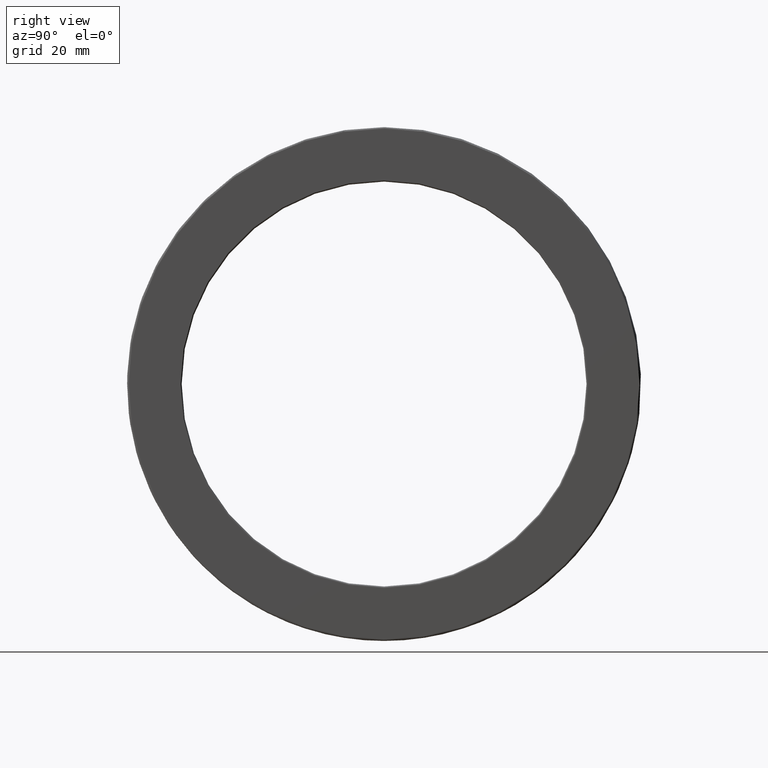
[diagram: clean part render]
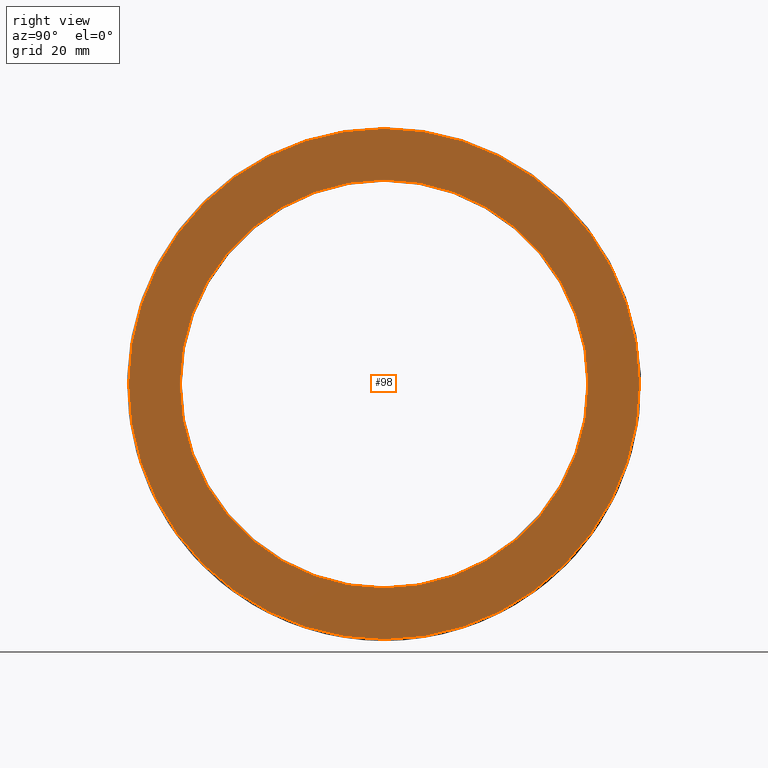
[diagram: same view with one face highlighted and labeled with its STEP entity id]
A machine part, right view. The second image highlights one B-rep face of the part: STEP entity #98.
In plain terms, the highlighted planar face has unit normal (1, 0, 0).
Its self-contained STEP definition (entity closure, byte-faithful):
#36 = DIRECTION ( 'NONE',  ( 0.0000000000000000000, 0.0000000000000000000, 1.000000000000000000 ) ) ;
#49 = CARTESIAN_POINT ( 'NONE',  ( 0.5315000000000004200, 0.0000000000000000000, 2.579000000000000200 ) ) ;
#89 = DIRECTION ( 'NONE',  ( 1.000000000000000000, 0.0000000000000000000, 0.0000000000000000000 ) ) ;
#98 = ADVANCED_FACE ( 'NONE', ( #402, #137 ), #330, .T. ) ;
#123 = CARTESIAN_POINT ( 'NONE',  ( 0.5315000000000004200, 0.0000000000000000000, 0.0000000000000000000 ) ) ;
#127 = EDGE_LOOP ( 'NONE', ( #209 ) ) ;
#137 = FACE_OUTER_BOUND ( 'NONE', #549, .T. ) ;
#165 = CARTESIAN_POINT ( 'NONE',  ( 0.5315000000000004200, 0.0000000000000000000, 3.228000000000000600 ) ) ;
#209 = ORIENTED_EDGE ( 'NONE', *, *, #678, .T. ) ;
#219 = CIRCLE ( 'NONE', #261, 3.228000000000000600 ) ;
#261 = AXIS2_PLACEMENT_3D ( 'NONE', #123, #438, #372 ) ;
#330 = PLANE ( 'NONE',  #531 ) ;
#351 = EDGE_CURVE ( 'NONE', #448, #448, #219, .T. ) ;
#354 = AXIS2_PLACEMENT_3D ( 'NONE', #804, #484, #36 ) ;
#355 = CIRCLE ( 'NONE', #354, 2.579000000000000200 ) ;
#372 = DIRECTION ( 'NONE',  ( 0.0000000000000000000, 0.0000000000000000000, 1.000000000000000000 ) ) ;
#402 = FACE_BOUND ( 'NONE', #127, .T. ) ;
#438 = DIRECTION ( 'NONE',  ( -1.000000000000000000, -0.0000000000000000000, -0.0000000000000000000 ) ) ;
#448 = VERTEX_POINT ( 'NONE', #165 ) ;
#467 = CARTESIAN_POINT ( 'NONE',  ( 0.5315000000000004200, 0.0000000000000000000, 0.0000000000000000000 ) ) ;
#484 = DIRECTION ( 'NONE',  ( -1.000000000000000000, -0.0000000000000000000, -0.0000000000000000000 ) ) ;
#531 = AXIS2_PLACEMENT_3D ( 'NONE', #467, #89, #774 ) ;
#549 = EDGE_LOOP ( 'NONE', ( #775 ) ) ;
#678 = EDGE_CURVE ( 'NONE', #805, #805, #355, .T. ) ;
#774 = DIRECTION ( 'NONE',  ( 0.0000000000000000000, 0.0000000000000000000, -1.000000000000000000 ) ) ;
#775 = ORIENTED_EDGE ( 'NONE', *, *, #351, .F. ) ;
#804 = CARTESIAN_POINT ( 'NONE',  ( 0.5315000000000004200, 0.0000000000000000000, 0.0000000000000000000 ) ) ;
#805 = VERTEX_POINT ( 'NONE', #49 ) ;